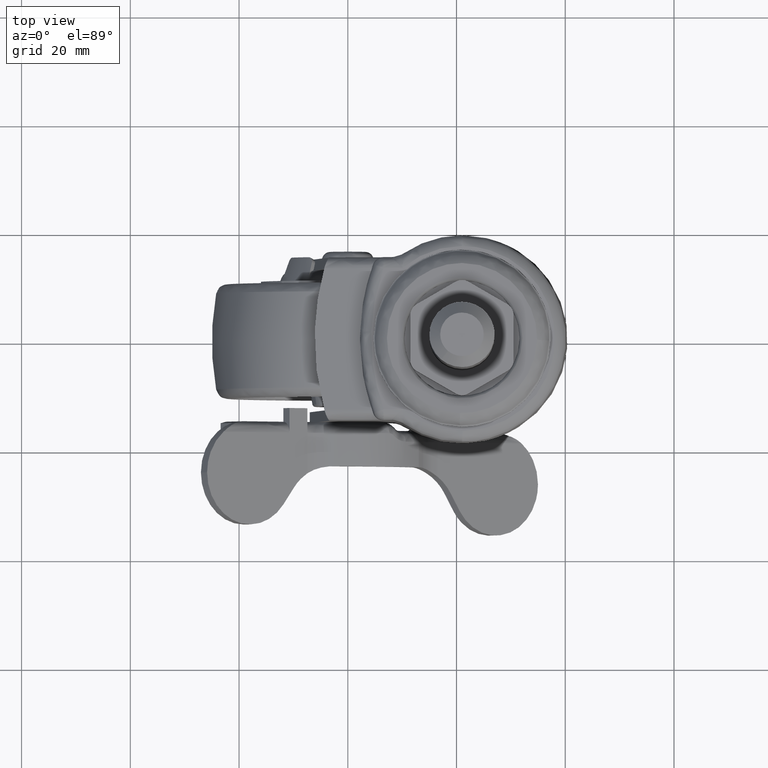
[diagram: clean part render]
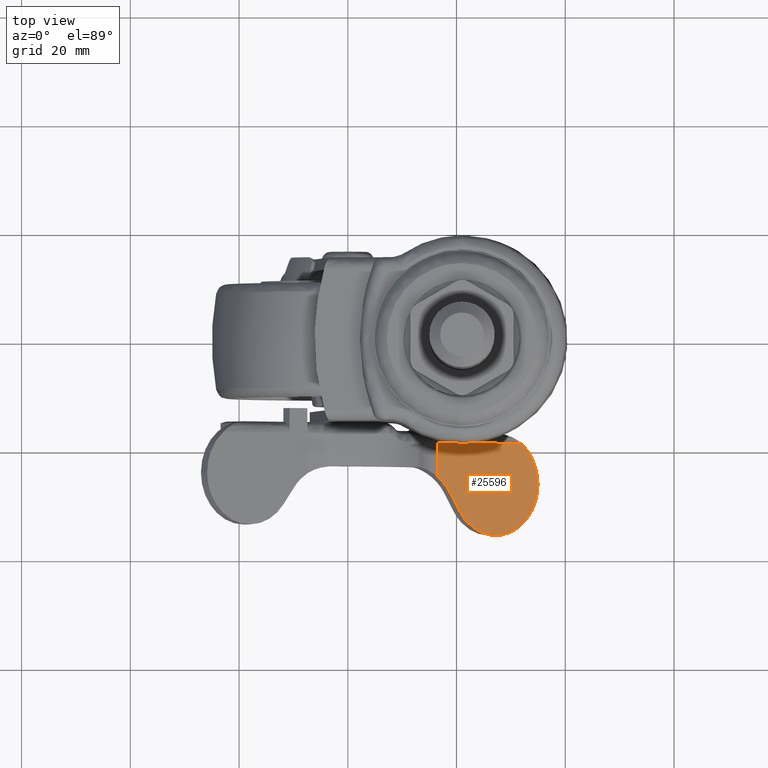
[diagram: same view with one face highlighted and labeled with its STEP entity id]
A machine part, top view. The second image highlights one B-rep face of the part: STEP entity #25596.
In plain terms, the highlighted face is a freeform B-spline surface patch.
Its self-contained STEP definition (entity closure, byte-faithful):
#22524=CARTESIAN_POINT('',(14.568528432599400,-18.489471000000002,8.000510183492189));
#22525=VERTEX_POINT('',#22524);
#22576=CARTESIAN_POINT('',(33.330841725883602,-18.489470999999948,8.001163492027089));
#22577=VERTEX_POINT('',#22576);
#22616=CARTESIAN_POINT('',(33.330841725883602,-18.489470999999948,8.001163492027089));
#22617=CARTESIAN_POINT('',(14.568528432599400,-18.489471000000002,8.000510183492189));
#22618=QUASI_UNIFORM_CURVE('',1,(#22616,#22617),.UNSPECIFIED.,.F.,.U.);
#22619=EDGE_CURVE('',#22577,#22525,#22618,.T.);
#24326=CARTESIAN_POINT('',(36.999814945577000,-25.951586629943701,8.001291246610530));
#24327=VERTEX_POINT('',#24326);
#24328=CARTESIAN_POINT('',(36.999814945577000,-25.951586629943701,8.001291246610530));
#24329=CARTESIAN_POINT('',(36.996582426437172,-25.032586604328831,8.001291134053311));
#24330=CARTESIAN_POINT('',(36.807562289855490,-23.778436817282540,8.001284552324126));
#24331=CARTESIAN_POINT('',(36.188768578934393,-22.068926931504361,8.001263005769081));
#24332=CARTESIAN_POINT('',(35.586516961114739,-20.936587970701030,8.001242035214220));
#24333=CARTESIAN_POINT('',(34.624339065408293,-19.637411001201279,8.001208531934347));
#24334=CARTESIAN_POINT('',(33.861763045587800,-18.902087803830259,8.001181978842995));
#24335=CARTESIAN_POINT('',(33.330841725883602,-18.489470999999948,8.001163492027089));
#24336=B_SPLINE_CURVE_WITH_KNOTS('',3,(#24328,#24329,#24330,#24331,#24332,#24333,#24334,#24335),.UNSPECIFIED.,.F.,.U.,(4,1,1,1,1,4),(0.000000024790934,2.756830079103933,3.765432875416013,5.446405048240100,6.589481044564771,8.606668542471933),.UNSPECIFIED.);
#24337=EDGE_CURVE('',#24327,#22577,#24336,.T.);
#24396=CARTESIAN_POINT('',(17.499467111920151,-27.877431602435951,8.000612239524530));
#24397=VERTEX_POINT('',#24396);
#24398=CARTESIAN_POINT('',(14.568528432599379,-24.832572682271149,8.000510183492160));
#24399=VERTEX_POINT('',#24398);
#24400=CARTESIAN_POINT('',(17.499467111920151,-27.877431602435951,8.000612239524530));
#24401=CARTESIAN_POINT('',(17.056681990942241,-27.160274784964422,8.000596821633753));
#24402=CARTESIAN_POINT('',(16.156848686427288,-26.047852431605211,8.000565489208594));
#24403=CARTESIAN_POINT('',(15.047216278191870,-25.154115029252580,8.000526851525082));
#24404=CARTESIAN_POINT('',(14.568528432599379,-24.832572682271149,8.000510183492160));
#24405=B_SPLINE_CURVE_WITH_KNOTS('',3,(#24400,#24401,#24402,#24403,#24404),.UNSPECIFIED.,.F.,.U.,(4,1,4),(2.668427E-009,2.528442121450664,4.258428976831612),.UNSPECIFIED.);
#24406=EDGE_CURVE('',#24397,#24399,#24405,.T.);
#24440=CARTESIAN_POINT('',(19.417920088381649,-30.982646303283101,8.000679040546800));
#24441=VERTEX_POINT('',#24440);
#24447=CARTESIAN_POINT('',(17.499467111920151,-27.877431602435951,8.000612239524530));
#24448=CARTESIAN_POINT('',(19.417920088381649,-30.982646303283101,8.000679040546800));
#24449=QUASI_UNIFORM_CURVE('',1,(#24447,#24448),.UNSPECIFIED.,.F.,.U.);
#24450=EDGE_CURVE('',#24397,#24441,#24449,.T.);
#24481=CARTESIAN_POINT('',(36.999814945577000,-26.027357370056301,8.001291246610421));
#24482=VERTEX_POINT('',#24481);
#24488=CARTESIAN_POINT('',(19.417920088381649,-30.982646303283101,8.000679040546800));
#24489=CARTESIAN_POINT('',(19.653115731905061,-31.363359093025981,8.000687230119109));
#24490=CARTESIAN_POINT('',(20.252333787738401,-32.195535915857263,8.000708095044642));
#24491=CARTESIAN_POINT('',(21.364657843156021,-33.307477429826427,8.000746826451994));
#24492=CARTESIAN_POINT('',(22.865130910178070,-34.353016350048321,8.000799073306908));
#24493=CARTESIAN_POINT('',(24.427321721215691,-35.035182792782862,8.000853469189424));
#24494=CARTESIAN_POINT('',(26.143480321178380,-35.436963179389679,8.000913226269661));
#24495=CARTESIAN_POINT('',(27.713864305802481,-35.536751654271690,8.000967907440444));
#24496=CARTESIAN_POINT('',(29.179618646524549,-35.370044387657103,8.001018945380693));
#24497=CARTESIAN_POINT('',(30.637761252568350,-34.998584788347479,8.001069718277815));
#24498=CARTESIAN_POINT('',(31.995547054968931,-34.414997483469563,8.001116996726122));
#24499=CARTESIAN_POINT('',(33.494677408573182,-33.427258701059728,8.001169196827268));
#24500=CARTESIAN_POINT('',(34.770957513715231,-32.203758143037760,8.001213637226137));
#24501=CARTESIAN_POINT('',(35.847994146099367,-30.644935539280659,8.001251139916361));
#24502=CARTESIAN_POINT('',(36.479215188450858,-29.203543819789651,8.001273119194176));
#24503=CARTESIAN_POINT('',(36.892895546404311,-27.657155880756768,8.001287523649443));
#24504=CARTESIAN_POINT('',(36.997347454043677,-26.666673396861100,8.001291160692173));
#24505=CARTESIAN_POINT('',(36.999814945577000,-26.027357370056301,8.001291246610421));
#24506=B_SPLINE_CURVE_WITH_KNOTS('',3,(#24488,#24489,#24490,#24491,#24492,#24493,#24494,#24495,#24496,#24497,#24498,#24499,#24500,#24501,#24502,#24503,#24504,#24505),.UNSPECIFIED.,.F.,.U.,(4,1,1,1,1,1,1,1,1,1,1,1,1,1,1,4),(0.000000152597451,1.342517243891532,3.068732209768122,4.698987076416401,6.808763270181451,8.151354652970738,9.973416879671840,11.507816676570901,12.562581789943669,14.480586136236580,15.919042560371230,17.932926948416011,19.754996085228591,21.577087798290751,22.631941655433518,24.549890157160110),.UNSPECIFIED.);
#24507=EDGE_CURVE('',#24441,#24482,#24506,.T.);
#25116=CARTESIAN_POINT('',(14.568528432599400,-18.489471000000002,8.000510183492189));
#25117=CARTESIAN_POINT('',(14.568528432599379,-24.832572682271149,8.000510183492160));
#25118=QUASI_UNIFORM_CURVE('',1,(#25116,#25117),.UNSPECIFIED.,.F.,.U.);
#25119=EDGE_CURVE('',#22525,#24399,#25118,.T.);
#25578=CARTESIAN_POINT('',(13.448085373754910,-36.337295628885101,8.000471169379070));
#25579=CARTESIAN_POINT('',(38.120256600562172,-36.337295628885101,8.001330260674692));
#25580=CARTESIAN_POINT('',(13.448085373754910,-17.640384901924389,8.000471169379070));
#25581=CARTESIAN_POINT('',(38.120256600562172,-17.640384901924389,8.001330260674692));
#25582=B_SPLINE_SURFACE_WITH_KNOTS('',1,1,((#25578,#25580),(#25579,#25581)),.UNSPECIFIED.,.F.,.F.,.U.,(2,2),(2,2),(0.0,24.672171241764140),(0.0,18.696910726960720),.UNSPECIFIED.);
#25583=ORIENTED_EDGE('',*,*,#24337,.T.);
#25584=ORIENTED_EDGE('',*,*,#22619,.T.);
#25585=ORIENTED_EDGE('',*,*,#25119,.T.);
#25586=ORIENTED_EDGE('',*,*,#24406,.F.);
#25587=ORIENTED_EDGE('',*,*,#24450,.T.);
#25588=ORIENTED_EDGE('',*,*,#24507,.T.);
#25589=CARTESIAN_POINT('',(36.999814945577000,-25.951586629943701,8.001291246610530));
#25590=CARTESIAN_POINT('',(36.999814945577000,-26.027357370056301,8.001291246610421));
#25591=QUASI_UNIFORM_CURVE('',1,(#25589,#25590),.UNSPECIFIED.,.F.,.U.);
#25592=EDGE_CURVE('',#24327,#24482,#25591,.T.);
#25593=ORIENTED_EDGE('',*,*,#25592,.F.);
#25594=EDGE_LOOP('',(#25583,#25584,#25585,#25586,#25587,#25588,#25593));
#25595=FACE_OUTER_BOUND('',#25594,.T.);
#25596=ADVANCED_FACE('',(#25595),#25582,.T.);